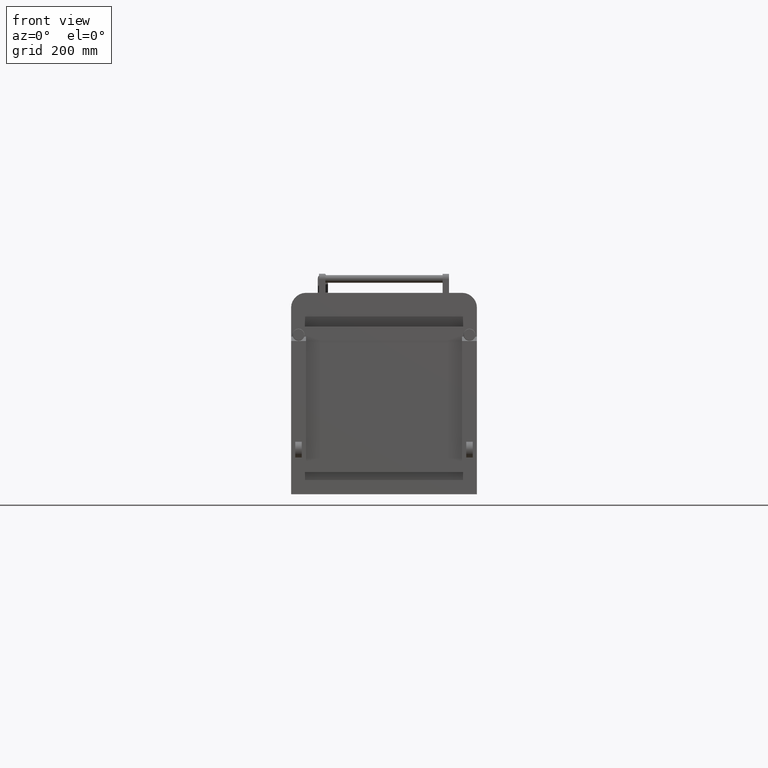
[diagram: clean part render]
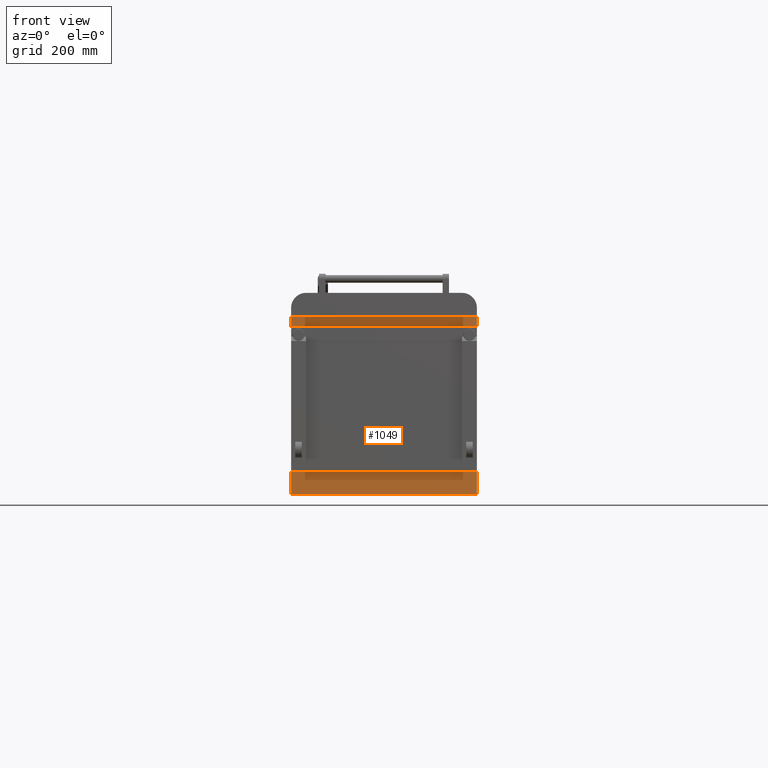
[diagram: same view with one face highlighted and labeled with its STEP entity id]
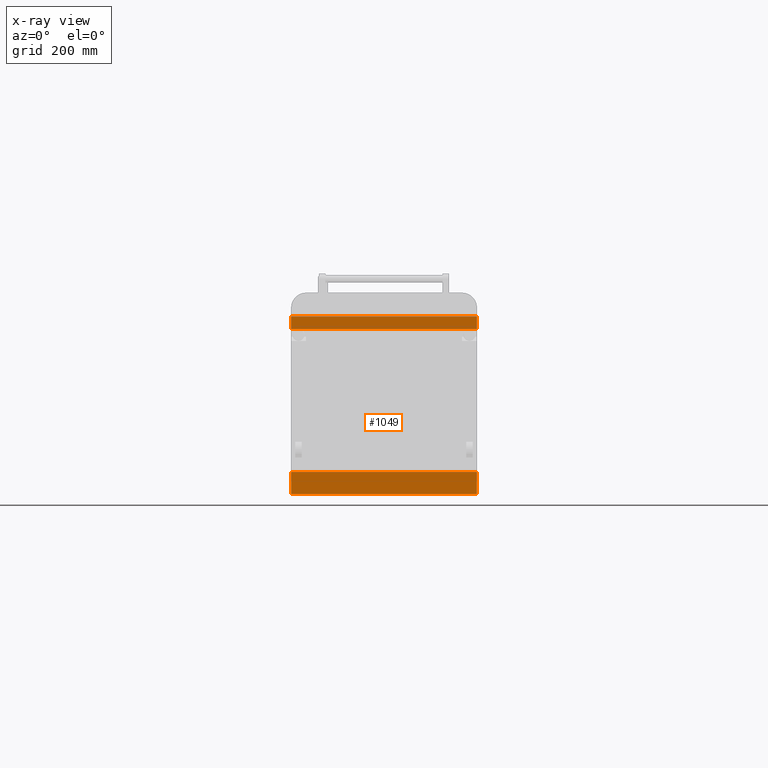
[diagram: x-ray of the same camera — body ghosted, the highlighted face saturated]
A machine part, front view. The second image highlights one B-rep face of the part: STEP entity #1049.
The next image is the same camera in x-ray: the body ghosted, the highlighted face saturated — about 0% of this face is hidden behind the body in this view.
In plain terms, the highlighted planar face has unit normal (0, 1, 0).
Its self-contained STEP definition (entity closure, byte-faithful):
#2 = VERTEX_POINT ( 'NONE', #4529 ) ;
#13 = LINE ( 'NONE', #3944, #2074 ) ;
#91 = EDGE_LOOP ( 'NONE', ( #5015, #182, #521, #4847 ) ) ;
#181 = CARTESIAN_POINT ( 'NONE',  ( -292.7999999999997800, -856.3500000000001400, -280.0000000000000000 ) ) ;
#182 = ORIENTED_EDGE ( 'NONE', *, *, #4305, .T. ) ;
#185 = LINE ( 'NONE', #4846, #558 ) ;
#243 = EDGE_CURVE ( 'NONE', #1013, #4125, #333, .T. ) ;
#333 = LINE ( 'NONE', #181, #4424 ) ;
#445 = LINE ( 'NONE', #2362, #3193 ) ;
#521 = ORIENTED_EDGE ( 'NONE', *, *, #4886, .F. ) ;
#558 = VECTOR ( 'NONE', #3607, 1000.000000000000000 ) ;
#589 = ORIENTED_EDGE ( 'NONE', *, *, #2799, .F. ) ;
#598 = EDGE_CURVE ( 'NONE', #2, #2290, #694, .T. ) ;
#694 = LINE ( 'NONE', #5098, #1217 ) ;
#778 = DIRECTION ( 'NONE',  ( 1.000000000000000000, -0.0000000000000000000, -0.0000000000000000000 ) ) ;
#811 = VERTEX_POINT ( 'NONE', #5220 ) ;
#842 = VECTOR ( 'NONE', #4768, 1000.000000000000000 ) ;
#967 = LINE ( 'NONE', #4821, #842 ) ;
#1013 = VERTEX_POINT ( 'NONE', #5199 ) ;
#1049 = ADVANCED_FACE ( 'NONE', ( #3007, #4957 ), #4065, .F. ) ;
#1195 = EDGE_CURVE ( 'NONE', #2, #2182, #185, .T. ) ;
#1217 = VECTOR ( 'NONE', #3926, 1000.000000000000000 ) ;
#1251 = DIRECTION ( 'NONE',  ( 0.0000000000000000000, -0.0000000000000000000, 1.000000000000000000 ) ) ;
#1517 = CARTESIAN_POINT ( 'NONE',  ( -292.7999999999997800, -856.3500000000001400, 240.0000000000002000 ) ) ;
#1527 = EDGE_CURVE ( 'NONE', #3469, #811, #4588, .T. ) ;
#1633 = EDGE_LOOP ( 'NONE', ( #589, #2374, #3856, #4720 ) ) ;
#1793 = DIRECTION ( 'NONE',  ( 1.000000000000000000, -0.0000000000000000000, -0.0000000000000000000 ) ) ;
#1825 = CARTESIAN_POINT ( 'NONE',  ( 292.8000000000000100, -856.3500000000000200, -210.3999999999997800 ) ) ;
#2041 = CARTESIAN_POINT ( 'NONE',  ( -293.0000000000000000, -856.3500000000000200, 279.9999999999999400 ) ) ;
#2074 = VECTOR ( 'NONE', #778, 1000.000000000000000 ) ;
#2182 = VERTEX_POINT ( 'NONE', #3540 ) ;
#2211 = CARTESIAN_POINT ( 'NONE',  ( 292.8000000000000100, -856.3500000000000200, -280.0000000000000000 ) ) ;
#2290 = VERTEX_POINT ( 'NONE', #2596 ) ;
#2362 = CARTESIAN_POINT ( 'NONE',  ( -293.0000000000000000, -856.3500000000000200, 279.9999999999999400 ) ) ;
#2374 = ORIENTED_EDGE ( 'NONE', *, *, #243, .T. ) ;
#2497 = LINE ( 'NONE', #4186, #3722 ) ;
#2551 = DIRECTION ( 'NONE',  ( -0.0000000000000000000, -0.0000000000000000000, 1.000000000000000000 ) ) ;
#2564 = AXIS2_PLACEMENT_3D ( 'NONE', #2041, #2823, #1251 ) ;
#2596 = CARTESIAN_POINT ( 'NONE',  ( 293.0000000000000000, -856.3500000000000200, -280.0000000000000600 ) ) ;
#2799 = EDGE_CURVE ( 'NONE', #1013, #3469, #2497, .T. ) ;
#2823 = DIRECTION ( 'NONE',  ( 0.0000000000000000000, 1.000000000000000000, 0.0000000000000000000 ) ) ;
#3007 = FACE_OUTER_BOUND ( 'NONE', #91, .T. ) ;
#3193 = VECTOR ( 'NONE', #5173, 1000.000000000000000 ) ;
#3469 = VERTEX_POINT ( 'NONE', #1825 ) ;
#3540 = CARTESIAN_POINT ( 'NONE',  ( -293.0000000000000000, -856.3500000000000200, 279.9999999999999400 ) ) ;
#3607 = DIRECTION ( 'NONE',  ( -0.0000000000000000000, -0.0000000000000000000, 1.000000000000000000 ) ) ;
#3687 = CARTESIAN_POINT ( 'NONE',  ( 293.0000000000000000, -856.3500000000000200, 279.9999999999999400 ) ) ;
#3722 = VECTOR ( 'NONE', #1793, 1000.000000000000000 ) ;
#3856 = ORIENTED_EDGE ( 'NONE', *, *, #4855, .T. ) ;
#3926 = DIRECTION ( 'NONE',  ( 1.000000000000000000, -0.0000000000000000000, -0.0000000000000000000 ) ) ;
#3944 = CARTESIAN_POINT ( 'NONE',  ( -293.0000000000000000, -856.3500000000000200, 240.0000000000002000 ) ) ;
#3946 = VERTEX_POINT ( 'NONE', #3687 ) ;
#4065 = PLANE ( 'NONE',  #2564 ) ;
#4125 = VERTEX_POINT ( 'NONE', #1517 ) ;
#4138 = VECTOR ( 'NONE', #2551, 1000.000000000000000 ) ;
#4164 = DIRECTION ( 'NONE',  ( -0.0000000000000000000, -0.0000000000000000000, 1.000000000000000000 ) ) ;
#4186 = CARTESIAN_POINT ( 'NONE',  ( -293.0000000000000000, -856.3500000000000200, -210.3999999999997800 ) ) ;
#4305 = EDGE_CURVE ( 'NONE', #2290, #3946, #967, .T. ) ;
#4424 = VECTOR ( 'NONE', #4164, 1000.000000000000000 ) ;
#4529 = CARTESIAN_POINT ( 'NONE',  ( -293.0000000000000000, -856.3500000000000200, -280.0000000000000600 ) ) ;
#4588 = LINE ( 'NONE', #2211, #4138 ) ;
#4720 = ORIENTED_EDGE ( 'NONE', *, *, #1527, .F. ) ;
#4768 = DIRECTION ( 'NONE',  ( -0.0000000000000000000, -0.0000000000000000000, 1.000000000000000000 ) ) ;
#4821 = CARTESIAN_POINT ( 'NONE',  ( 293.0000000000000000, -856.3500000000000200, 279.9999999999999400 ) ) ;
#4846 = CARTESIAN_POINT ( 'NONE',  ( -293.0000000000000000, -856.3500000000000200, 279.9999999999999400 ) ) ;
#4847 = ORIENTED_EDGE ( 'NONE', *, *, #1195, .F. ) ;
#4855 = EDGE_CURVE ( 'NONE', #4125, #811, #13, .T. ) ;
#4886 = EDGE_CURVE ( 'NONE', #2182, #3946, #445, .T. ) ;
#4957 = FACE_BOUND ( 'NONE', #1633, .T. ) ;
#5015 = ORIENTED_EDGE ( 'NONE', *, *, #598, .T. ) ;
#5098 = CARTESIAN_POINT ( 'NONE',  ( -293.0000000000000000, -856.3500000000000200, -280.0000000000000600 ) ) ;
#5173 = DIRECTION ( 'NONE',  ( 1.000000000000000000, -0.0000000000000000000, -0.0000000000000000000 ) ) ;
#5199 = CARTESIAN_POINT ( 'NONE',  ( -292.7999999999997800, -856.3500000000001400, -210.3999999999997800 ) ) ;
#5220 = CARTESIAN_POINT ( 'NONE',  ( 292.8000000000000100, -856.3500000000000200, 240.0000000000002000 ) ) ;